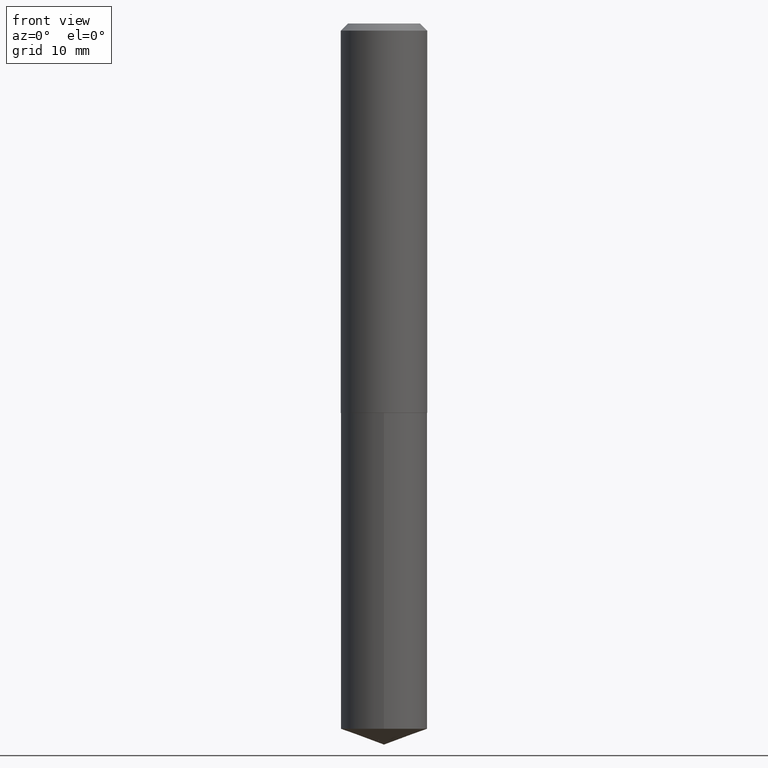
[diagram: clean part render]
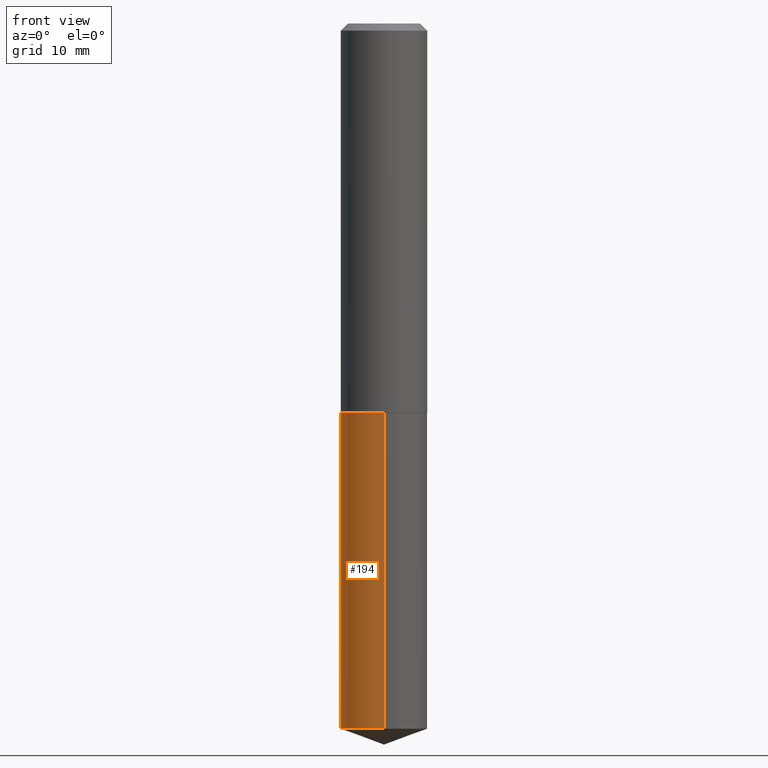
[diagram: same view with one face highlighted and labeled with its STEP entity id]
A machine part, front view. The second image highlights one B-rep face of the part: STEP entity #194.
In plain terms, the highlighted cylindrical surface (partial cylindrical patch) has radius 4.7625 mm, axis along (-0, 0, 1).
Its self-contained STEP definition (entity closure, byte-faithful):
#12 = VERTEX_POINT ( 'NONE', #233 ) ;
#16 = AXIS2_PLACEMENT_3D ( 'NONE', #124, #211, #327 ) ;
#22 = CYLINDRICAL_SURFACE ( 'NONE', #319, 0.1875000000000000278 ) ;
#33 = CARTESIAN_POINT ( 'NONE',  ( -1.309305502066100264E-15, -0.1875000000000106581, -3.056755581075087047 ) ) ;
#40 = CARTESIAN_POINT ( 'NONE',  ( -1.309305502066133790E-15, -0.1875000000000059119, -1.687499999999999778 ) ) ;
#81 = AXIS2_PLACEMENT_3D ( 'NONE', #97, #244, #302 ) ;
#97 = CARTESIAN_POINT ( 'NONE',  ( 7.475517159671779799E-29, -1.067215148185558012E-14, -3.056755581075087491 ) ) ;
#98 = ORIENTED_EDGE ( 'NONE', *, *, #333, .T. ) ;
#118 = CARTESIAN_POINT ( 'NONE',  ( 4.126728610437418568E-29, -5.891874759297808836E-15, -1.687500000000000222 ) ) ;
#124 = CARTESIAN_POINT ( 'NONE',  ( 4.126728610437418568E-29, -5.891874759297808836E-15, -1.687500000000000222 ) ) ;
#127 = EDGE_CURVE ( 'NONE', #12, #375, #329, .T. ) ;
#130 = CARTESIAN_POINT ( 'NONE',  ( 1.332267629550228869E-15, 0.1874999999999941158, -1.687500000000000888 ) ) ;
#131 = VERTEX_POINT ( 'NONE', #326 ) ;
#140 = CIRCLE ( 'NONE', #81, 0.1875000000000000278 ) ;
#142 = ORIENTED_EDGE ( 'NONE', *, *, #127, .F. ) ;
#148 = VECTOR ( 'NONE', #168, 39.37007874015748143 ) ;
#151 = DIRECTION ( 'NONE',  ( -2.445700127513827662E-29, 3.491150073534467548E-15, 1.000000000000000000 ) ) ;
#168 = DIRECTION ( 'NONE',  ( -2.445700127513827662E-29, 3.491150073534467548E-15, 1.000000000000000000 ) ) ;
#169 = EDGE_LOOP ( 'NONE', ( #362, #253, #98, #142 ) ) ;
#187 = VECTOR ( 'NONE', #190, 39.37007874015748143 ) ;
#190 = DIRECTION ( 'NONE',  ( -2.445700127513827662E-29, 3.491150073534467548E-15, 1.000000000000000000 ) ) ;
#194 = ADVANCED_FACE ( 'NONE', ( #291 ), #22, .T. ) ;
#211 = DIRECTION ( 'NONE',  ( -2.445700127513827662E-29, 3.491150073534467548E-15, 1.000000000000000000 ) ) ;
#216 = LINE ( 'NONE', #130, #187 ) ;
#224 = VERTEX_POINT ( 'NONE', #33 ) ;
#233 = CARTESIAN_POINT ( 'NONE',  ( 1.332267629550262396E-15, 0.1874999999999940603, -1.687500000000000888 ) ) ;
#244 = DIRECTION ( 'NONE',  ( -2.445700127513827662E-29, 3.491150073534467548E-15, 1.000000000000000000 ) ) ;
#253 = ORIENTED_EDGE ( 'NONE', *, *, #285, .T. ) ;
#285 = EDGE_CURVE ( 'NONE', #131, #224, #140, .T. ) ;
#291 = FACE_OUTER_BOUND ( 'NONE', #169, .T. ) ;
#295 = EDGE_CURVE ( 'NONE', #131, #12, #216, .T. ) ;
#299 = LINE ( 'NONE', #40, #148 ) ;
#302 = DIRECTION ( 'NONE',  ( -6.982962677686265922E-15, -1.000000000000000000, 2.913971193241880372E-15 ) ) ;
#319 = AXIS2_PLACEMENT_3D ( 'NONE', #118, #151, #356 ) ;
#326 = CARTESIAN_POINT ( 'NONE',  ( 1.332267629550262396E-15, 0.1874999999999893141, -3.056755581075088379 ) ) ;
#327 = DIRECTION ( 'NONE',  ( -6.982962677686265922E-15, -1.000000000000000000, 2.913971193241880372E-15 ) ) ;
#329 = CIRCLE ( 'NONE', #16, 0.1875000000000000278 ) ;
#333 = EDGE_CURVE ( 'NONE', #224, #375, #299, .T. ) ;
#356 = DIRECTION ( 'NONE',  ( -6.982962677686265922E-15, -1.000000000000000000, 2.913971193241880372E-15 ) ) ;
#362 = ORIENTED_EDGE ( 'NONE', *, *, #295, .F. ) ;
#366 = CARTESIAN_POINT ( 'NONE',  ( -1.309305502066133790E-15, -0.1875000000000059119, -1.687499999999999778 ) ) ;
#375 = VERTEX_POINT ( 'NONE', #366 ) ;